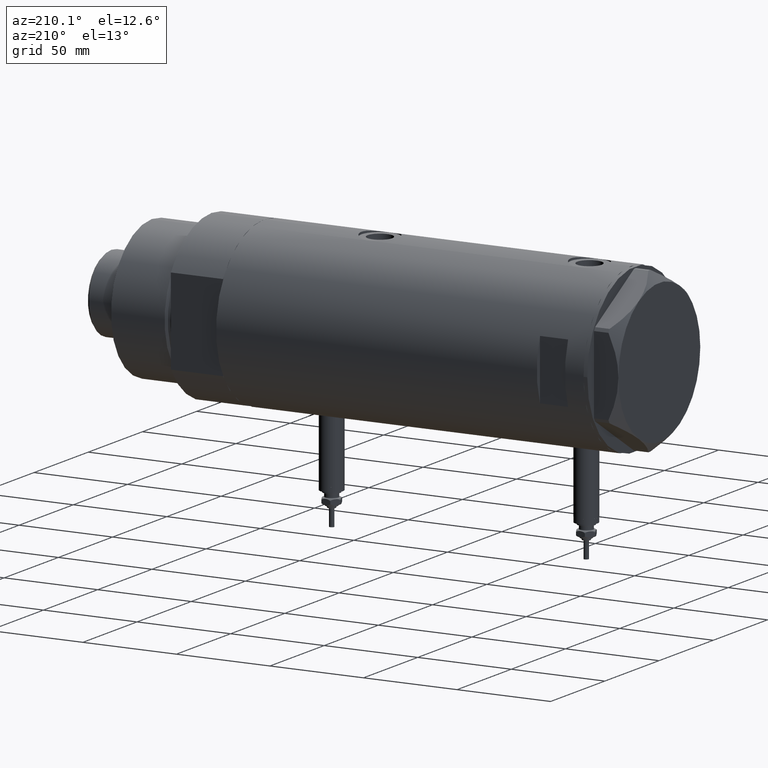
[diagram: clean part render]
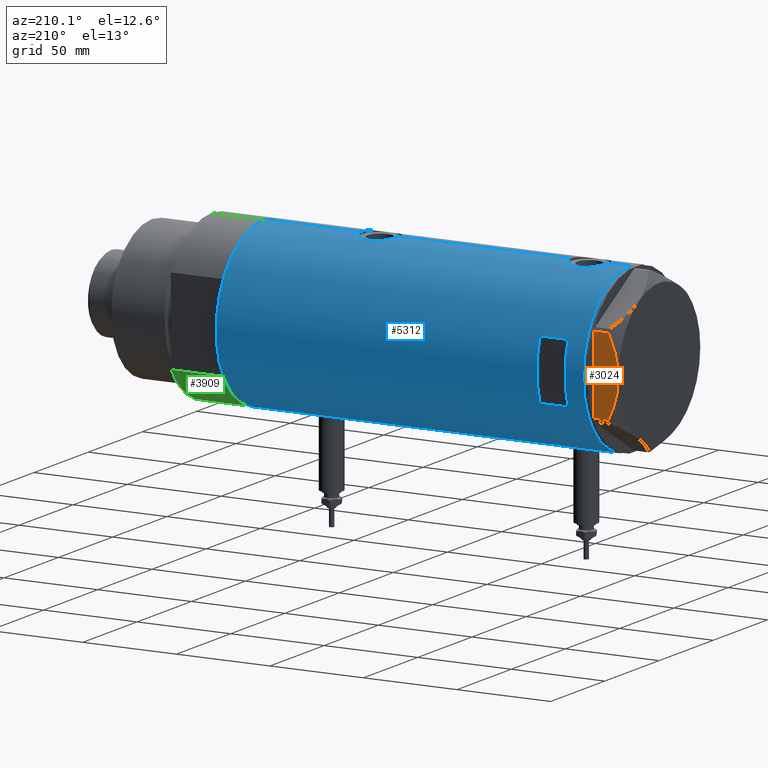
[diagram: same view with three faces highlighted in distinct colors, each labeled with its STEP entity id]
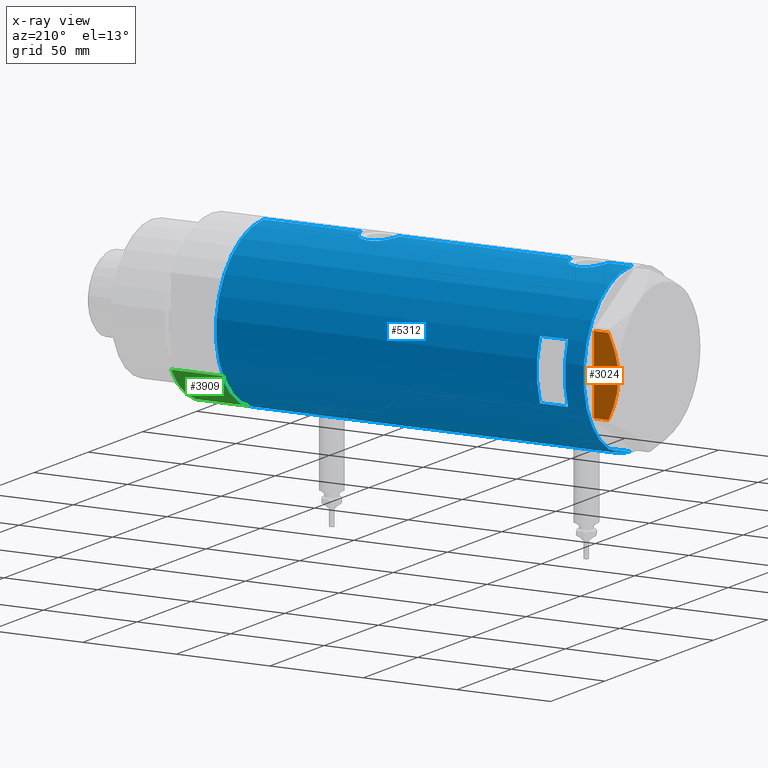
[diagram: x-ray of the same camera — body ghosted, the three highlighted faces saturated]
A machine part, auxiliary view with three faces highlighted in distinct colors.
The next image is the same camera in x-ray (body ghosted, the three faces saturated) — at least one of them is partly hidden behind the body in this view.
Their STEP definitions:

[orange] entity #3024 — the highlighted planar face has unit normal (0, -1, -0).
#94 = CARTESIAN_POINT ( 'NONE',  ( 37.75000000000000711, 1.802777518484591547E-14, 13.00000000000000000 ) ) ;
#240 = B_SPLINE_CURVE_WITH_KNOTS ( 'NONE', 3,
 ( #94, #674, #3798, #2518, #3362, #1487, #3332, #5192, #2880, #5221, #4743, #582, #2424, #1068 ),
 .UNSPECIFIED., .F., .F.,
 ( 4, 2, 2, 2, 2, 2, 4 ),
 ( 0.07749717587205659508, 0.08017617902235897598, 0.08285518217266137075, 0.08821318847326614643, 0.09357119477387092210, 0.09625019792417330300, 0.09892920107447569777 ),
 .UNSPECIFIED. ) ;
#327 = CARTESIAN_POINT ( 'NONE',  ( 37.75000000000000000, 20.67497266190835958, 7.709124142616976094 ) ) ;
#399 = CARTESIAN_POINT ( 'NONE',  ( 37.75000000000001421, -14.89874562435959504, 10.17375260246623547 ) ) ;
#498 = CARTESIAN_POINT ( 'NONE',  ( 37.75000000000000000, 20.67497266190835958, 0.000000000000000000 ) ) ;
#582 = CARTESIAN_POINT ( 'NONE',  ( 37.75000000000000000, 19.05362936076134162, 8.470554105526112210 ) ) ;
#609 = B_SPLINE_CURVE_WITH_KNOTS ( 'NONE', 3,
 ( #1417, #3727, #4559, #399, #5098, #3261, #3238, #5483, #2232, #4126 ),
 .UNSPECIFIED., .F., .F.,
 ( 4, 2, 2, 2, 4 ),
 ( 0.05601050456479946676, 0.06138217239161374711, 0.06406800630502089422, 0.06675384021842803439, 0.07749717587205659508 ),
 .UNSPECIFIED. ) ;
#674 = CARTESIAN_POINT ( 'NONE',  ( 37.75000000000000711, 0.9015134592203699615, 12.99999999999999112 ) ) ;
#684 = AXIS2_PLACEMENT_3D ( 'NONE', #3021, #2561, #1649 ) ;
#825 = EDGE_CURVE ( 'NONE', #1392, #4172, #5416, .T. ) ;
#828 = CARTESIAN_POINT ( 'NONE',  ( 37.75000000000000711, 1.802777518484591547E-14, 13.00000000000000000 ) ) ;
#1036 = DIRECTION ( 'NONE',  ( -4.775569585389645902E-16, 1.000000000000000000, 0.000000000000000000 ) ) ;
#1068 = CARTESIAN_POINT ( 'NONE',  ( 37.75000000000000000, 20.67497266190835958, 7.709124142616976094 ) ) ;
#1084 = FACE_OUTER_BOUND ( 'NONE', #3637, .T. ) ;
#1392 = VERTEX_POINT ( 'NONE', #498 ) ;
#1417 = CARTESIAN_POINT ( 'NONE',  ( 37.75000000000002132, -20.67497266190837024, 7.709124142616982311 ) ) ;
#1487 = CARTESIAN_POINT ( 'NONE',  ( 37.75000000000000000, 7.161343005612795132, 12.36677985830370829 ) ) ;
#1646 = ORIENTED_EDGE ( 'NONE', *, *, #825, .T. ) ;
#1649 = DIRECTION ( 'NONE',  ( 4.775569585389645902E-16, -1.000000000000000000, 0.000000000000000000 ) ) ;
#1982 = PLANE ( 'NONE',  #684 ) ;
#2047 = EDGE_CURVE ( 'NONE', #2965, #1392, #3800, .T. ) ;
#2106 = VECTOR ( 'NONE', #1036, 1000.000000000000000 ) ;
#2232 = CARTESIAN_POINT ( 'NONE',  ( 37.75000000000000000, -3.615248338761618552, 12.99999999999998934 ) ) ;
#2340 = CARTESIAN_POINT ( 'NONE',  ( 37.75000000000002132, -20.67497266190835958, 0.000000000000000000 ) ) ;
#2424 = CARTESIAN_POINT ( 'NONE',  ( 37.75000000000000000, 19.86857906850807964, 8.096480699986591034 ) ) ;
#2518 = CARTESIAN_POINT ( 'NONE',  ( 37.75000000000000711, 3.611424898442247233, 12.83826937481875596 ) ) ;
#2561 = DIRECTION ( 'NONE',  ( -1.000000000000000000, -4.775569585389645902E-16, 0.000000000000000000 ) ) ;
#2880 = CARTESIAN_POINT ( 'NONE',  ( 37.75000000000000000, 14.04742653794396823, 10.50092616350622166 ) ) ;
#2961 = DIRECTION ( 'NONE',  ( 0.000000000000000000, 0.000000000000000000, -1.000000000000000000 ) ) ;
#2965 = VERTEX_POINT ( 'NONE', #2340 ) ;
#3021 = CARTESIAN_POINT ( 'NONE',  ( 37.75000000000002132, -21.79497266190837124, 13.00000000000000000 ) ) ;
#3024 = ADVANCED_FACE ( 'NONE', ( #1084 ), #1982, .F. ) ;
#3082 = VERTEX_POINT ( 'NONE', #828 ) ;
#3148 = ORIENTED_EDGE ( 'NONE', *, *, #3757, .F. ) ;
#3238 = CARTESIAN_POINT ( 'NONE',  ( 37.75000000000002132, -11.46926194450820802, 11.30493988086502632 ) ) ;
#3261 = CARTESIAN_POINT ( 'NONE',  ( 37.75000000000001421, -12.33018559404072256, 11.04557586999680296 ) ) ;
#3332 = CARTESIAN_POINT ( 'NONE',  ( 37.75000000000000711, 8.905753572404311313, 11.99914237172014353 ) ) ;
#3362 = CARTESIAN_POINT ( 'NONE',  ( 37.75000000000000711, 4.503994958793054337, 12.74237531377021604 ) ) ;
#3441 = CARTESIAN_POINT ( 'NONE',  ( 37.75000000000002132, -20.67497266190835958, 13.00000000000000000 ) ) ;
#3590 = VECTOR ( 'NONE', #2961, 1000.000000000000000 ) ;
#3637 = EDGE_LOOP ( 'NONE', ( #4174, #4028, #4500, #1646, #3148 ) ) ;
#3727 = CARTESIAN_POINT ( 'NONE',  ( 37.75000000000001421, -19.06473524669325315, 8.482612457517156201 ) ) ;
#3757 = EDGE_CURVE ( 'NONE', #3082, #4172, #240, .T. ) ;
#3798 = CARTESIAN_POINT ( 'NONE',  ( 37.75000000000000000, 1.811728074765807994, 12.96720910498919466 ) ) ;
#3800 = LINE ( 'NONE', #5194, #2106 ) ;
#3944 = EDGE_CURVE ( 'NONE', #4669, #3082, #609, .T. ) ;
#4028 = ORIENTED_EDGE ( 'NONE', *, *, #5767, .T. ) ;
#4126 = CARTESIAN_POINT ( 'NONE',  ( 37.75000000000000711, 1.802777518484591547E-14, 13.00000000000000000 ) ) ;
#4172 = VERTEX_POINT ( 'NONE', #327 ) ;
#4174 = ORIENTED_EDGE ( 'NONE', *, *, #3944, .F. ) ;
#4346 = LINE ( 'NONE', #3441, #3590 ) ;
#4454 = CARTESIAN_POINT ( 'NONE',  ( 37.75000000000002132, -20.67497266190837024, 7.709124142616982311 ) ) ;
#4500 = ORIENTED_EDGE ( 'NONE', *, *, #2047, .T. ) ;
#4559 = CARTESIAN_POINT ( 'NONE',  ( 37.75000000000002132, -17.42329546264822682, 9.202188366597432889 ) ) ;
#4632 = DIRECTION ( 'NONE',  ( 0.000000000000000000, 0.000000000000000000, 1.000000000000000000 ) ) ;
#4669 = VERTEX_POINT ( 'NONE', #4454 ) ;
#4743 = CARTESIAN_POINT ( 'NONE',  ( 37.75000000000000000, 17.40390235304479560, 9.187919079516760235 ) ) ;
#4971 = CARTESIAN_POINT ( 'NONE',  ( 37.75000000000000000, 20.67497266190835958, 13.00000000000000000 ) ) ;
#5098 = CARTESIAN_POINT ( 'NONE',  ( 37.75000000000002132, -14.04433099034386778, 10.48027127384610679 ) ) ;
#5192 = CARTESIAN_POINT ( 'NONE',  ( 37.75000000000000711, 12.34877760086738441, 11.06613894200179260 ) ) ;
#5194 = CARTESIAN_POINT ( 'NONE',  ( 37.75000000000002132, -21.79497266190837124, 0.000000000000000000 ) ) ;
#5221 = CARTESIAN_POINT ( 'NONE',  ( 37.75000000000000711, 16.56731140591521978, 9.531835068628826235 ) ) ;
#5416 = LINE ( 'NONE', #4971, #5988 ) ;
#5483 = CARTESIAN_POINT ( 'NONE',  ( 37.75000000000000711, -7.143641079404811300, 12.47474846747315347 ) ) ;
#5767 = EDGE_CURVE ( 'NONE', #4669, #2965, #4346, .T. ) ;
#5988 = VECTOR ( 'NONE', #4632, 1000.000000000000000 ) ;

[blue] entity #5312 — the highlighted cylindrical surface (partial cylindrical patch) has radius 44 mm, axis along (-1, -0, 0).
#1 = EDGE_LOOP ( 'NONE', ( #995, #1433, #5867, #2802, #4451, #5673, #2450, #1846, #1928, #2270, #2792, #1565 ) ) ;
#11 = CIRCLE ( 'NONE', #3398, 44.00000000000000000 ) ;
#12 = CARTESIAN_POINT ( 'NONE',  ( -43.97068415157985299, 1.617901284326948907, -55.85954871699957636 ) ) ;
#30 = CARTESIAN_POINT ( 'NONE',  ( -43.66575107734168171, 5.414026674167576658, 71.07064911962299902 ) ) ;
#64 = CARTESIAN_POINT ( 'NONE',  ( -43.64122538274736485, 5.608286354294326870, -59.13388613036661212 ) ) ;
#113 = CARTESIAN_POINT ( 'NONE',  ( 0.000000000000000000, 0.000000000000000000, 73.20000000000018758 ) ) ;
#126 = CARTESIAN_POINT ( 'NONE',  ( 43.92756755766649235, 2.604528169608121946, -26.42286588097656974 ) ) ;
#136 = CARTESIAN_POINT ( 'NONE',  ( -44.00000000000000000, 5.388445781992449847E-15, -68.15000000000001990 ) ) ;
#144 = CARTESIAN_POINT ( 'NONE',  ( 42.92259096922160211, 9.678247830257127760, 78.50005993028796070 ) ) ;
#152 = CARTESIAN_POINT ( 'NONE',  ( 43.39051256276903246, 7.301963662770314833, -29.25975531787057804 ) ) ;
#162 = CARTESIAN_POINT ( 'NONE',  ( -43.92459115390705193, 2.581892149021001615, -67.59545827073348789 ) ) ;
#193 = CARTESIAN_POINT ( 'NONE',  ( -43.83593455218809964, 3.811409182021281428, -56.92985072296500704 ) ) ;
#194 = VECTOR ( 'NONE', #4339, 1000.000000000000000 ) ;
#203 = CARTESIAN_POINT ( 'NONE',  ( 44.00000000000002132, 0.6630566900259825536, 65.90000000000003411 ) ) ;
#213 = CARTESIAN_POINT ( 'NONE',  ( 43.97062489912107708, 1.639461988184801156, -26.22985373334014625 ) ) ;
#215 = CARTESIAN_POINT ( 'NONE',  ( -43.80646232387288563, 4.132500855894024383, 78.90645585403358098 ) ) ;
#243 = DIRECTION ( 'NONE',  ( 0.000000000000000000, 0.000000000000000000, 1.000000000000000000 ) ) ;
#253 = CARTESIAN_POINT ( 'NONE',  ( 44.00000000000000000, 0.000000000000000000, 98.20000000000000284 ) ) ;
#328 = VERTEX_POINT ( 'NONE', #3810 ) ;
#352 = EDGE_CURVE ( 'NONE', #2478, #4715, #6005, .T. ) ;
#356 = CARTESIAN_POINT ( 'NONE',  ( -44.00000000000000000, 5.388445916248353619E-15, 98.20000000000000284 ) ) ;
#362 = CARTESIAN_POINT ( 'NONE',  ( -43.55382423478827292, 6.250151562062086441, 73.79410470512661391 ) ) ;
#397 = CARTESIAN_POINT ( 'NONE',  ( -43.71938389712227746, 4.966728892888062852, 78.01614452340872674 ) ) ;
#422 = EDGE_CURVE ( 'NONE', #987, #2784, #4640, .T. ) ;
#426 = CARTESIAN_POINT ( 'NONE',  ( -43.55386785759471024, 6.249847571481740971, 74.61054947617955690 ) ) ;
#428 = CARTESIAN_POINT ( 'NONE',  ( 43.85884410404901246, 3.534688330930388922, -45.46019808750336466 ) ) ;
#481 = DIRECTION ( 'NONE',  ( 0.000000000000000000, 0.000000000000000000, 1.000000000000000000 ) ) ;
#483 = CARTESIAN_POINT ( 'NONE',  ( 43.07598348983508174, 8.971306953823013686, -40.52969423187187914 ) ) ;
#496 = CARTESIAN_POINT ( 'NONE',  ( -43.95446647384544292, 2.010857111636600969, -55.97875773636064878 ) ) ;
#515 = CARTESIAN_POINT ( 'NONE',  ( 42.86370458161098185, 9.935807968041572735, -37.40904550429866049 ) ) ;
#532 = CARTESIAN_POINT ( 'NONE',  ( 43.80640706382536109, 4.134078575915387965, 85.01132821562090669 ) ) ;
#546 = CARTESIAN_POINT ( 'NONE',  ( -43.97754480947185129, 1.419697478855583617, 80.29003276052073090 ) ) ;
#560 = CIRCLE ( 'NONE', #3949, 44.00000000000000000 ) ;
#567 = CARTESIAN_POINT ( 'NONE',  ( -15.96871942267132027, 40.99999999999999289, 73.20000000000000284 ) ) ;
#574 = EDGE_CURVE ( 'NONE', #2173, #5268, #1090, .T. ) ;
#588 = CARTESIAN_POINT ( 'NONE',  ( -43.67867890111968876, 5.309046579850795311, -65.20422779076025677 ) ) ;
#599 = CARTESIAN_POINT ( 'NONE',  ( 43.27871541412905287, 7.937063204555986573, 81.99174997246032603 ) ) ;
#610 = CARTESIAN_POINT ( 'NONE',  ( 43.80640706382535399, 4.134078575915393294, -26.98867178437913239 ) ) ;
#625 = LINE ( 'NONE', #3896, #3283 ) ;
#637 = FACE_BOUND ( 'NONE', #5743, .T. ) ;
#654 = CARTESIAN_POINT ( 'NONE',  ( 43.94229162222111285, 2.275476993733910547, 66.15685535777693360 ) ) ;
#671 = CYLINDRICAL_SURFACE ( 'NONE', #1736, 44.00000000000000000 ) ;
#683 = CARTESIAN_POINT ( 'NONE',  ( -44.00000000000000000, 5.388445916248353619E-15, -98.20000000000000284 ) ) ;
#726 = FACE_OUTER_BOUND ( 'NONE', #1, .T. ) ;
#739 = B_SPLINE_CURVE_WITH_KNOTS ( 'NONE', 3,
 ( #5955, #2284, #3705, #1778, #4154, #879, #428, #3667, #6009, #5574, #1888, #2822, #1393, #4678, #4591, #4642, #5001, #483, #3213, #2258, #2693, #5981, #2322, #515, #1804, #4192, #5519, #1861, #1361, #5073, #4772, #1545, #3851, #1482, #4285, #1028, #152, #2018, #3299, #1579, #2449, #5738, #610, #5188, #126, #213, #2510, #1092, #1451, #2876 ),
 .UNSPECIFIED., .F., .F.,
 ( 4, 2, 2, 2, 2, 2, 2, 2, 2, 2, 2, 2, 2, 2, 2, 2, 2, 2, 2, 2, 2, 2, 2, 2, 4 ),
 ( 2.755634020688765633E-18, 0.001960456513248879772, 0.002940684769873318574, 0.003920913026497756942, 0.005881369539746635414, 0.006861597796371073782, 0.007841826052995512150, 0.009802282566244404499, 0.01078251082286885675, 0.01176273907949330899, 0.01274296733611776297, 0.01372319559274221522, 0.01568365210599110063, 0.01764410861923998777, 0.01960456513248886798, 0.02058479338911332196, 0.02156502164573776553, 0.02254524990236220564, 0.02352547815898664574, 0.02548593467223553288, 0.02646616292885997299, 0.02744639118548441656, 0.02940684769873329329, 0.03038707595535772993, 0.03136730421198216656 ),
 .UNSPECIFIED. ) ;
#814 = CARTESIAN_POINT ( 'NONE',  ( -43.87596296923810968, 3.305851531861728976, 68.89196414123739487 ) ) ;
#854 = VERTEX_POINT ( 'NONE', #356 ) ;
#855 = CIRCLE ( 'NONE', #3377, 44.00000000000000000 ) ;
#877 = CARTESIAN_POINT ( 'NONE',  ( -43.80687348212602217, 4.128385987736833407, 69.48951256689038303 ) ) ;
#879 = CARTESIAN_POINT ( 'NONE',  ( 43.88297407487991109, 3.222431612395382228, -45.57228202029342157 ) ) ;
#883 = CARTESIAN_POINT ( 'NONE',  ( -44.00000000000000000, 5.388445781992449847E-15, -68.15000000000001990 ) ) ;
#928 = CARTESIAN_POINT ( 'NONE',  ( -43.91315028150560096, 2.769134003554746482, 68.59317380624599991 ) ) ;
#987 = VERTEX_POINT ( 'NONE', #993 ) ;
#993 = CARTESIAN_POINT ( 'NONE',  ( 44.00000000000000000, 0.000000000000000000, -98.20000000000000284 ) ) ;
#995 = ORIENTED_EDGE ( 'NONE', *, *, #5019, .T. ) ;
#999 = CARTESIAN_POINT ( 'NONE',  ( -43.94507179847653333, 2.206027755801677870, 80.05131522281796208 ) ) ;
#1015 = ORIENTED_EDGE ( 'NONE', *, *, #2732, .F. ) ;
#1028 = CARTESIAN_POINT ( 'NONE',  ( 43.35257020184194232, 7.523219862841651562, -29.50397445915864481 ) ) ;
#1048 = CARTESIAN_POINT ( 'NONE',  ( 42.96547725528407824, 9.488625330801083280, 79.12450347211071744 ) ) ;
#1052 = CARTESIAN_POINT ( 'NONE',  ( 0.000000000000000000, 0.000000000000000000, 88.20000000000000284 ) ) ;
#1073 = CARTESIAN_POINT ( 'NONE',  ( -43.91315028150559385, 2.769134003554746037, -67.50682619375406546 ) ) ;
#1076 = DIRECTION ( 'NONE',  ( 0.000000000000000000, 0.000000000000000000, 1.000000000000000000 ) ) ;
#1083 = CARTESIAN_POINT ( 'NONE',  ( 43.07598348983507464, 8.971306953823011909, 71.47030576812815639 ) ) ;
#1090 = LINE ( 'NONE', #5187, #4824 ) ;
#1092 = CARTESIAN_POINT ( 'NONE',  ( 43.99635668041006653, 0.6544833911834557760, -26.11599291522469457 ) ) ;
#1098 = DIRECTION ( 'NONE',  ( 1.000000000000000000, 0.000000000000000000, 0.000000000000000000 ) ) ;
#1103 = CARTESIAN_POINT ( 'NONE',  ( -43.87596296923811678, 3.305851531861740522, -67.20803585876262787 ) ) ;
#1108 = VERTEX_POINT ( 'NONE', #567 ) ;
#1112 = CARTESIAN_POINT ( 'NONE',  ( 43.39051256276903246, 7.301963662770311281, 82.74024468212945749 ) ) ;
#1126 = EDGE_CURVE ( 'NONE', #328, #5857, #560, .T. ) ;
#1134 = CARTESIAN_POINT ( 'NONE',  ( 43.71454618729810448, 5.012329428678959253, 84.55936974058313638 ) ) ;
#1148 = CARTESIAN_POINT ( 'NONE',  ( 0.000000000000000000, 0.000000000000000000, 98.20000000000000284 ) ) ;
#1178 = CARTESIAN_POINT ( 'NONE',  ( -43.88883895882799635, 3.130924084324101297, 68.78687544251856423 ) ) ;
#1187 = EDGE_CURVE ( 'NONE', #3752, #4991, #3438, .T. ) ;
#1292 = DIRECTION ( 'NONE',  ( 0.000000000000000000, 0.000000000000000000, 1.000000000000000000 ) ) ;
#1319 = LINE ( 'NONE', #2775, #5604 ) ;
#1359 = CARTESIAN_POINT ( 'NONE',  ( -43.59867737633045692, 5.931302618788633296, 72.18750504970115855 ) ) ;
#1361 = CARTESIAN_POINT ( 'NONE',  ( 42.96547725528407113, 9.488625330801086832, -32.87549652788927546 ) ) ;
#1365 = CARTESIAN_POINT ( 'NONE',  ( -43.95446647384543581, 2.010857111636599637, 80.12124226363938817 ) ) ;
#1366 = DIRECTION ( 'NONE',  ( 1.000000000000000000, 0.000000000000000000, 0.000000000000000000 ) ) ;
#1393 = CARTESIAN_POINT ( 'NONE',  ( 43.46520118248736253, 6.843279251446920064, -43.39898327212166151 ) ) ;
#1415 = CARTESIAN_POINT ( 'NONE',  ( -43.66555354895124452, 5.415612800338318600, 77.32656357177557993 ) ) ;
#1429 = CARTESIAN_POINT ( 'NONE',  ( -43.88968326835893663, 3.132363423941624259, -56.47620767643520168 ) ) ;
#1433 = ORIENTED_EDGE ( 'NONE', *, *, #1187, .T. ) ;
#1451 = CARTESIAN_POINT ( 'NONE',  ( 44.00000000000002132, 0.3269372501759380545, -26.10000000000001918 ) ) ;
#1463 = CARTESIAN_POINT ( 'NONE',  ( -43.64133398152736021, 5.607447751852158824, -64.66786045012435125 ) ) ;
#1471 = CARTESIAN_POINT ( 'NONE',  ( 43.50265731352001808, 6.601850423195591233, 68.38180832701048928 ) ) ;
#1482 = CARTESIAN_POINT ( 'NONE',  ( 43.24261242176996234, 8.130827601038834729, -30.26944813145831148 ) ) ;
#1501 = CARTESIAN_POINT ( 'NONE',  ( 42.99303682946563043, 9.360292926890506848, 72.36575779792798357 ) ) ;
#1522 = CARTESIAN_POINT ( 'NONE',  ( -43.58362292239463187, 6.039157555656604615, -60.27736421551959722 ) ) ;
#1533 = CARTESIAN_POINT ( 'NONE',  ( 42.90786968859021044, 9.742642423712171151, 73.62197703452876851 ) ) ;
#1545 = CARTESIAN_POINT ( 'NONE',  ( 43.13962074468733476, 8.660138848900677644, -31.08910258836065665 ) ) ;
#1559 = CARTESIAN_POINT ( 'NONE',  ( -43.80687348212602217, 4.128385987736840512, -66.61048743310966813 ) ) ;
#1565 = ORIENTED_EDGE ( 'NONE', *, *, #422, .F. ) ;
#1567 = CARTESIAN_POINT ( 'NONE',  ( 42.86396777580258544, 9.934664719553397916, 77.21576199026523568 ) ) ;
#1579 = CARTESIAN_POINT ( 'NONE',  ( 43.68141895191831026, 5.292250119194736868, -27.60895047714807049 ) ) ;
#1594 = CARTESIAN_POINT ( 'NONE',  ( 43.04652664061922707, 9.111152824375430725, 80.03458009214594426 ) ) ;
#1604 = EDGE_CURVE ( 'NONE', #2478, #854, #4450, .T. ) ;
#1642 = AXIS2_PLACEMENT_3D ( 'NONE', #2200, #3672, #1366 ) ;
#1648 = CARTESIAN_POINT ( 'NONE',  ( 43.98169492814103165, 1.310824514239766536, 85.81919780380685836 ) ) ;
#1683 = CARTESIAN_POINT ( 'NONE',  ( 0.000000000000000000, 0.000000000000000000, -98.20000000000000284 ) ) ;
#1698 = VERTEX_POINT ( 'NONE', #253 ) ;
#1736 = AXIS2_PLACEMENT_3D ( 'NONE', #1683, #243, #5741 ) ;
#1750 = CARTESIAN_POINT ( 'NONE',  ( -44.00000000000000000, 5.388445781982983516E-15, 67.95000000000001705 ) ) ;
#1770 = DIRECTION ( 'NONE',  ( 0.000000000000000000, 0.000000000000000000, 1.000000000000000000 ) ) ;
#1775 = CARTESIAN_POINT ( 'NONE',  ( -43.74833112883977293, 4.708208586952001617, 78.33050383508880543 ) ) ;
#1778 = CARTESIAN_POINT ( 'NONE',  ( 43.94229162222111285, 2.275476993733913655, -45.84314464222307350 ) ) ;
#1803 = CARTESIAN_POINT ( 'NONE',  ( -43.64122538274737195, 5.608286354294323317, 76.96611386963340351 ) ) ;
#1804 = CARTESIAN_POINT ( 'NONE',  ( 42.84863276153905787, 9.999733523508369970, -36.75869904750778261 ) ) ;
#1832 = CARTESIAN_POINT ( 'NONE',  ( -43.92459115390705193, 2.581892149020998950, 68.50454172926654905 ) ) ;
#1846 = ORIENTED_EDGE ( 'NONE', *, *, #4540, .F. ) ;
#1859 = CARTESIAN_POINT ( 'NONE',  ( -43.99999999999997158, 0.4081702738789203533, 67.94999999999997442 ) ) ;
#1861 = CARTESIAN_POINT ( 'NONE',  ( 42.92259096922158790, 9.678247830257131312, -33.49994006971207483 ) ) ;
#1888 = CARTESIAN_POINT ( 'NONE',  ( 43.57657781376907025, 6.094873943596692101, -44.03474301119596390 ) ) ;
#1900 = CARTESIAN_POINT ( 'NONE',  ( -43.66575107734169592, 5.414026674167585540, -65.02935088037702371 ) ) ;
#1909 = CARTESIAN_POINT ( 'NONE',  ( 44.00000000000000000, -2.552687571866728611E-15, 65.90000000000001990 ) ) ;
#1925 = CARTESIAN_POINT ( 'NONE',  ( -43.88968326835893663, 3.132363423941621150, 79.62379232356479974 ) ) ;
#1928 = ORIENTED_EDGE ( 'NONE', *, *, #4618, .F. ) ;
#1952 = CARTESIAN_POINT ( 'NONE',  ( 43.98503110884232115, 1.314607393679875669, 65.96529015654452621 ) ) ;
#1956 = CARTESIAN_POINT ( 'NONE',  ( -44.00000000000000000, 4.742435893011557518E-16, 80.45000000000001705 ) ) ;
#1996 = CARTESIAN_POINT ( 'NONE',  ( -43.59995593514495482, 5.920088975424572908, -59.88582091308221322 ) ) ;
#2007 = CARTESIAN_POINT ( 'NONE',  ( 43.77939001959705223, 4.442287752090382291, 66.91693822440836925 ) ) ;
#2018 = CARTESIAN_POINT ( 'NONE',  ( 43.50382207688846847, 6.605942769308304818, -28.56395311161779915 ) ) ;
#2032 = CARTESIAN_POINT ( 'NONE',  ( -43.66555354895123031, 5.415612800338319488, -58.77343642822444281 ) ) ;
#2042 = CARTESIAN_POINT ( 'NONE',  ( 42.84850876528983576, 10.00026482975808229, 76.55058305470424784 ) ) ;
#2173 = VERTEX_POINT ( 'NONE', #4391 ) ;
#2174 = CARTESIAN_POINT ( 'NONE',  ( 43.97062489912108418, 1.639461988184795604, 85.77014626665985020 ) ) ;
#2200 = CARTESIAN_POINT ( 'NONE',  ( 0.000000000000000000, 0.000000000000000000, -98.20000000000000284 ) ) ;
#2239 = B_SPLINE_CURVE_WITH_KNOTS ( 'NONE', 3,
 ( #3134, #2737, #4597, #4166, #12, #496, #3369, #3275, #1429, #193, #3858, #2950, #2858, #3337, #2032, #64, #2429, #1996, #1522, #3309, #2888, #4227, #2924, #4810, #5617, #5680, #5229, #1463, #1900, #588, #2836, #2389, #1559, #5170, #1103, #4687, #1073, #162, #4298, #3893, #4782, #3833, #136 ),
 .UNSPECIFIED., .F., .F.,
 ( 4, 2, 2, 2, 2, 2, 2, 2, 1, 2, 2, 2, 2, 2, 2, 2, 2, 2, 2, 2, 2, 4 ),
 ( 6.289190293195367850E-19, 0.001222818171749683351, 0.001834227257624524918, 0.002445636343499366702, 0.003668454515249052871, 0.004891272686998739475, 0.006114090858748426512, 0.006725499944623267862, 0.007336909030498110947, 0.007948318116372952297, 0.008559727202247794514, 0.009782545373997478949, 0.01100536354574716165, 0.01222818171749684782, 0.01283959080337170912, 0.01345099988924656868, 0.01467381806099629128, 0.01589663623274601215, 0.01650804531862087518, 0.01711945440449573475, 0.01834227257624545734, 0.01956509074799518341 ),
 .UNSPECIFIED. ) ;
#2257 = CARTESIAN_POINT ( 'NONE',  ( -43.74805001749254529, 4.711035428619386956, 70.07223935874202425 ) ) ;
#2258 = CARTESIAN_POINT ( 'NONE',  ( 42.99303682946562333, 9.360292926890512177, -39.63424220207205195 ) ) ;
#2270 = ORIENTED_EDGE ( 'NONE', *, *, #574, .F. ) ;
#2282 = CARTESIAN_POINT ( 'NONE',  ( -43.55963022497231663, 6.210088036293396563, 75.01646163017424840 ) ) ;
#2284 = CARTESIAN_POINT ( 'NONE',  ( 44.00000000000002132, 0.6630566900259828866, -46.10000000000002984 ) ) ;
#2320 = CARTESIAN_POINT ( 'NONE',  ( -43.67863969133946966, 5.309394106110037370, 77.50379296502549664 ) ) ;
#2322 = CARTESIAN_POINT ( 'NONE',  ( 42.90786968859021044, 9.742642423712174704, -38.37802296547129544 ) ) ;
#2338 = EDGE_CURVE ( 'NONE', #4351, #4715, #1319, .T. ) ;
#2366 = CARTESIAN_POINT ( 'NONE',  ( 43.35257020184194232, 7.523219862841656891, 82.49602554084137296 ) ) ;
#2389 = CARTESIAN_POINT ( 'NONE',  ( -43.74805001749253819, 4.711035428619393173, -66.02776064125799849 ) ) ;
#2429 = CARTESIAN_POINT ( 'NONE',  ( -43.61859254253774054, 5.782454868881357513, -59.50213599105533291 ) ) ;
#2439 = CARTESIAN_POINT ( 'NONE',  ( 43.77712723341632994, 4.432620652875498557, 84.86995009759974096 ) ) ;
#2449 = CARTESIAN_POINT ( 'NONE',  ( 43.71454618729809738, 5.012329428678962806, -27.44063025941690270 ) ) ;
#2450 = ORIENTED_EDGE ( 'NONE', *, *, #3719, .F. ) ;
#2462 = DIRECTION ( 'NONE',  ( 0.000000000000000000, 0.000000000000000000, 1.000000000000000000 ) ) ;
#2478 = VERTEX_POINT ( 'NONE', #1956 ) ;
#2510 = CARTESIAN_POINT ( 'NONE',  ( 43.98169492814103876, 1.310824514239766536, -26.18080219619315585 ) ) ;
#2662 = CARTESIAN_POINT ( 'NONE',  ( 44.00000000000000000, 0.000000000000000000, -98.20000000000000284 ) ) ;
#2691 = CARTESIAN_POINT ( 'NONE',  ( -43.55973179376100290, 6.209370339246232717, 73.37938232940132366 ) ) ;
#2693 = CARTESIAN_POINT ( 'NONE',  ( 42.96879251999280314, 9.470609476412120031, -39.32722899941056482 ) ) ;
#2732 = EDGE_CURVE ( 'NONE', #3292, #1108, #11, .T. ) ;
#2737 = CARTESIAN_POINT ( 'NONE',  ( -44.00000000000000000, 0.4135148353567994484, -55.64999999999999858 ) ) ;
#2755 = CARTESIAN_POINT ( 'NONE',  ( -43.59995593514495482, 5.920088975424566691, 76.21417908691780951 ) ) ;
#2766 = CARTESIAN_POINT ( 'NONE',  ( 15.96871942267132027, 40.99999999999999289, 73.20000000000000284 ) ) ;
#2775 = CARTESIAN_POINT ( 'NONE',  ( -44.00000000000000000, 5.388445916248353619E-15, -98.20000000000000284 ) ) ;
#2783 = CARTESIAN_POINT ( 'NONE',  ( -43.58221825186232223, 6.049526113783018744, 72.57737029182041510 ) ) ;
#2784 = VERTEX_POINT ( 'NONE', #3200 ) ;
#2792 = ORIENTED_EDGE ( 'NONE', *, *, #4013, .F. ) ;
#2802 = ORIENTED_EDGE ( 'NONE', *, *, #2338, .T. ) ;
#2822 = CARTESIAN_POINT ( 'NONE',  ( 43.50265731352001097, 6.601850423195605444, -43.61819167298953914 ) ) ;
#2836 = CARTESIAN_POINT ( 'NONE',  ( -43.71901936021025392, 4.969830049220633761, -65.71167637698874842 ) ) ;
#2842 = DIRECTION ( 'NONE',  ( 0.000000000000000000, 4.625929269271481378E-15, 1.000000000000000000 ) ) ;
#2858 = CARTESIAN_POINT ( 'NONE',  ( -43.71938389712227035, 4.966728892888067293, -58.08385547659131021 ) ) ;
#2864 = CARTESIAN_POINT ( 'NONE',  ( 43.57657781376909156, 6.094873943596678778, 67.96525698880405741 ) ) ;
#2876 = CARTESIAN_POINT ( 'NONE',  ( 44.00000000000000000, -3.917142467416489149E-21, -26.10000000000000497 ) ) ;
#2888 = CARTESIAN_POINT ( 'NONE',  ( -43.55963022497232373, 6.210088036293401004, -61.08353836982577434 ) ) ;
#2897 = CARTESIAN_POINT ( 'NONE',  ( 43.13962074468734897, 8.660138848900670538, 80.91089741163936822 ) ) ;
#2924 = CARTESIAN_POINT ( 'NONE',  ( -43.55382423478827292, 6.250151562062090882, -62.30589529487338041 ) ) ;
#2933 = CARTESIAN_POINT ( 'NONE',  ( 42.92624534982631701, 9.661626915142809580, 73.29991995855291975 ) ) ;
#2950 = CARTESIAN_POINT ( 'NONE',  ( -43.74833112883975872, 4.708208586952008723, -57.76949616491121731 ) ) ;
#2957 = CARTESIAN_POINT ( 'NONE',  ( 43.92466059386729427, 2.593004216484783964, 66.23643330328646073 ) ) ;
#2984 = CARTESIAN_POINT ( 'NONE',  ( 43.17277162440354488, 8.493905080221262338, 70.61212964891505806 ) ) ;
#3071 = VECTOR ( 'NONE', #481, 1000.000000000000000 ) ;
#3134 = CARTESIAN_POINT ( 'NONE',  ( -44.00000000000000000, 6.472851849715296073E-16, -55.65000000000000568 ) ) ;
#3200 = CARTESIAN_POINT ( 'NONE',  ( 44.00000000000000000, 2.836945177865671897E-15, -46.10000000000000853 ) ) ;
#3211 = CARTESIAN_POINT ( 'NONE',  ( -43.97181775256600389, 1.624866278047415680, 68.15107081614905837 ) ) ;
#3213 = CARTESIAN_POINT ( 'NONE',  ( 43.04663170950394857, 9.110642017076081345, -40.23547502190394454 ) ) ;
#3266 = CARTESIAN_POINT ( 'NONE',  ( -44.00000000000000711, 0.4135148353567996149, 80.45000000000001705 ) ) ;
#3275 = CARTESIAN_POINT ( 'NONE',  ( -43.91413175532568403, 2.773555030353458850, -56.28415761633254277 ) ) ;
#3283 = VECTOR ( 'NONE', #2462, 1000.000000000000000 ) ;
#3292 = VERTEX_POINT ( 'NONE', #2766 ) ;
#3299 = CARTESIAN_POINT ( 'NONE',  ( 43.57805684119164624, 6.103282219787168117, -28.15183798352141054 ) ) ;
#3308 = ORIENTED_EDGE ( 'NONE', *, *, #4610, .F. ) ;
#3309 = CARTESIAN_POINT ( 'NONE',  ( -43.57657963456318839, 6.089610171536609329, -60.47821460419189066 ) ) ;
#3320 = CARTESIAN_POINT ( 'NONE',  ( 42.96879251999280314, 9.470609476412112926, 72.67277100058944939 ) ) ;
#3337 = CARTESIAN_POINT ( 'NONE',  ( -43.67863969133946256, 5.309394106110041811, -58.59620703497452610 ) ) ;
#3348 = CARTESIAN_POINT ( 'NONE',  ( 43.46520118248735542, 6.843279251446916511, 68.60101672787835980 ) ) ;
#3369 = CARTESIAN_POINT ( 'NONE',  ( -43.94507179847653333, 2.206027755801681867, -56.04868477718203224 ) ) ;
#3376 = LINE ( 'NONE', #4274, #194 ) ;
#3377 = AXIS2_PLACEMENT_3D ( 'NONE', #1148, #4355, #1098 ) ;
#3398 = AXIS2_PLACEMENT_3D ( 'NONE', #113, #2842, #4630 ) ;
#3412 = CARTESIAN_POINT ( 'NONE',  ( 43.07641822757289418, 8.969229373860565957, 80.33396235790173989 ) ) ;
#3436 = CARTESIAN_POINT ( 'NONE',  ( 43.50382207688846847, 6.605942769308303930, 83.43604688838220795 ) ) ;
#3438 = LINE ( 'NONE', #5293, #4833 ) ;
#3504 = DIRECTION ( 'NONE',  ( 0.000000000000000000, 0.000000000000000000, 1.000000000000000000 ) ) ;
#3577 = ORIENTED_EDGE ( 'NONE', *, *, #1126, .F. ) ;
#3635 = CARTESIAN_POINT ( 'NONE',  ( -43.67867890111967455, 5.309046579850785541, 70.89577220923978018 ) ) ;
#3665 = CARTESIAN_POINT ( 'NONE',  ( -43.95549163632549750, 2.014511215452027937, 68.26941044295020333 ) ) ;
#3667 = CARTESIAN_POINT ( 'NONE',  ( 43.77939001959705223, 4.442287752090387620, -45.08306177559163075 ) ) ;
#3672 = DIRECTION ( 'NONE',  ( 0.000000000000000000, 0.000000000000000000, 1.000000000000000000 ) ) ;
#3675 = VECTOR ( 'NONE', #1292, 1000.000000000000000 ) ;
#3705 = CARTESIAN_POINT ( 'NONE',  ( 43.98503110884232825, 1.314607393679877445, -46.03470984345550221 ) ) ;
#3719 = EDGE_CURVE ( 'NONE', #1698, #854, #855, .T. ) ;
#3724 = CARTESIAN_POINT ( 'NONE',  ( -43.57657963456318839, 6.089610171536606664, 75.62178539580813208 ) ) ;
#3752 = VERTEX_POINT ( 'NONE', #4254 ) ;
#3777 = CARTESIAN_POINT ( 'NONE',  ( 43.88297407487991109, 3.222431612395379119, 66.42771797970659975 ) ) ;
#3810 = CARTESIAN_POINT ( 'NONE',  ( -15.96871942267132027, 40.99999999999999289, 88.20000000000000284 ) ) ;
#3814 = CARTESIAN_POINT ( 'NONE',  ( 43.35294442506074120, 7.532526048221051873, 69.29064585508892549 ) ) ;
#3833 = CARTESIAN_POINT ( 'NONE',  ( -44.00000000000000711, 0.4081702738789189655, -68.15000000000003411 ) ) ;
#3851 = CARTESIAN_POINT ( 'NONE',  ( 43.17306590853065273, 8.492365194390522731, -30.80987467306545113 ) ) ;
#3858 = CARTESIAN_POINT ( 'NONE',  ( -43.80646232387289274, 4.132500855894034153, -57.19354414596645597 ) ) ;
#3867 = CARTESIAN_POINT ( 'NONE',  ( 43.61291203895921598, 5.829986172017926016, 67.76871289213170257 ) ) ;
#3879 = CIRCLE ( 'NONE', #1642, 44.00000000000000000 ) ;
#3893 = CARTESIAN_POINT ( 'NONE',  ( -43.97181775256600389, 1.624866278047417012, -67.94892918385096436 ) ) ;
#3896 = CARTESIAN_POINT ( 'NONE',  ( 44.00000000000000000, 0.000000000000000000, -98.20000000000000284 ) ) ;
#3900 = CARTESIAN_POINT ( 'NONE',  ( 43.27822890220284791, 7.945655169171516263, 69.79274616710709722 ) ) ;
#3949 = AXIS2_PLACEMENT_3D ( 'NONE', #1052, #4181, #5242 ) ;
#3987 = CARTESIAN_POINT ( 'NONE',  ( 44.00000000000000000, -3.917104602093038540E-21, 85.90000000000000568 ) ) ;
#4013 = EDGE_CURVE ( 'NONE', #2784, #2173, #739, .T. ) ;
#4040 = VERTEX_POINT ( 'NONE', #5162 ) ;
#4064 = CARTESIAN_POINT ( 'NONE',  ( -43.71901936021023971, 4.969830049220626655, 70.38832362301124590 ) ) ;
#4106 = CARTESIAN_POINT ( 'NONE',  ( -44.00000000000000000, 5.388445781982983516E-15, 67.95000000000001705 ) ) ;
#4154 = CARTESIAN_POINT ( 'NONE',  ( 43.92466059386730137, 2.593004216484785740, -45.76356669671356059 ) ) ;
#4166 = CARTESIAN_POINT ( 'NONE',  ( -43.97754480947186551, 1.419697478855586059, -55.80996723947924210 ) ) ;
#4181 = DIRECTION ( 'NONE',  ( -0.000000000000000000, -0.000000000000000000, -1.000000000000000000 ) ) ;
#4192 = CARTESIAN_POINT ( 'NONE',  ( 42.84850876528982155, 10.00026482975808051, -35.44941694529577347 ) ) ;
#4227 = CARTESIAN_POINT ( 'NONE',  ( -43.55386785759470314, 6.249847571481745412, -61.48945052382045873 ) ) ;
#4233 = CARTESIAN_POINT ( 'NONE',  ( 43.92756755766649235, 2.604528169608113064, 85.57713411902345513 ) ) ;
#4250 = CARTESIAN_POINT ( 'NONE',  ( -43.97068415157983878, 1.617901284326946909, 80.24045128300046770 ) ) ;
#4254 = CARTESIAN_POINT ( 'NONE',  ( -44.00000000000000000, 5.388445916248353619E-15, -98.20000000000000284 ) ) ;
#4266 = CARTESIAN_POINT ( 'NONE',  ( -15.96871942267132027, 40.99999999999999289, -98.20000000000000284 ) ) ;
#4274 = CARTESIAN_POINT ( 'NONE',  ( 15.96871942267132027, 40.99999999999999289, -98.20000000000000284 ) ) ;
#4285 = CARTESIAN_POINT ( 'NONE',  ( 43.27871541412904577, 7.937063204555981244, -30.00825002753968107 ) ) ;
#4298 = CARTESIAN_POINT ( 'NONE',  ( -43.95549163632549750, 2.014511215452028825, -67.83058955704980519 ) ) ;
#4309 = CARTESIAN_POINT ( 'NONE',  ( 43.88561577393361546, 3.228056721358708359, 85.38721665727824472 ) ) ;
#4339 = DIRECTION ( 'NONE',  ( -0.000000000000000000, -0.000000000000000000, -1.000000000000000000 ) ) ;
#4351 = VERTEX_POINT ( 'NONE', #4548 ) ;
#4355 = DIRECTION ( 'NONE',  ( 0.000000000000000000, 0.000000000000000000, 1.000000000000000000 ) ) ;
#4370 = CARTESIAN_POINT ( 'NONE',  ( 43.71659050864931828, 5.015880325000608764, 67.22433174036180503 ) ) ;
#4391 = CARTESIAN_POINT ( 'NONE',  ( 44.00000000000000000, -3.917142467416489149E-21, -26.10000000000000497 ) ) ;
#4411 = EDGE_CURVE ( 'NONE', #1108, #328, #5477, .T. ) ;
#4450 = LINE ( 'NONE', #683, #5893 ) ;
#4451 = ORIENTED_EDGE ( 'NONE', *, *, #352, .F. ) ;
#4540 = EDGE_CURVE ( 'NONE', #4040, #1698, #625, .T. ) ;
#4548 = CARTESIAN_POINT ( 'NONE',  ( -44.00000000000000000, 6.472851849715296073E-16, -55.65000000000000568 ) ) ;
#4589 = CARTESIAN_POINT ( 'NONE',  ( -43.62981559643959883, 5.696090409300652802, 71.61948634585476725 ) ) ;
#4591 = CARTESIAN_POINT ( 'NONE',  ( 43.27822890220284080, 7.945655169171516263, -42.20725383289290278 ) ) ;
#4597 = CARTESIAN_POINT ( 'NONE',  ( -43.99417607942193342, 0.8200150578638759624, -55.69063327483257808 ) ) ;
#4610 = EDGE_CURVE ( 'NONE', #5857, #3292, #3376, .T. ) ;
#4618 = EDGE_CURVE ( 'NONE', #5268, #4040, #5878, .T. ) ;
#4630 = DIRECTION ( 'NONE',  ( 0.000000000000000000, 1.000000000000000000, -4.731064025391292434E-15 ) ) ;
#4640 = LINE ( 'NONE', #2662, #3071 ) ;
#4642 = CARTESIAN_POINT ( 'NONE',  ( 43.17277162440355198, 8.493905080221264114, -41.38787035108497037 ) ) ;
#4676 = ORIENTED_EDGE ( 'NONE', *, *, #4411, .F. ) ;
#4678 = CARTESIAN_POINT ( 'NONE',  ( 43.35294442506074120, 7.532526048221052761, -42.70935414491112425 ) ) ;
#4687 = CARTESIAN_POINT ( 'NONE',  ( -43.88883895882800346, 3.130924084324098633, -67.31312455748147272 ) ) ;
#4705 = CARTESIAN_POINT ( 'NONE',  ( -43.91413175532567692, 2.773555030353453965, 79.81584238366747286 ) ) ;
#4715 = VERTEX_POINT ( 'NONE', #4106 ) ;
#4772 = CARTESIAN_POINT ( 'NONE',  ( 43.07641822757289418, 8.969229373860574839, -31.66603764209828498 ) ) ;
#4782 = CARTESIAN_POINT ( 'NONE',  ( -43.99413512814552263, 0.8228129877960710381, -68.10908314325826041 ) ) ;
#4798 = DIRECTION ( 'NONE',  ( 0.000000000000000000, 0.000000000000000000, 1.000000000000000000 ) ) ;
#4810 = CARTESIAN_POINT ( 'NONE',  ( -43.55973179376098869, 6.209370339246239823, -62.72061767059870618 ) ) ;
#4813 = EDGE_CURVE ( 'NONE', #4351, #4991, #2239, .T. ) ;
#4817 = CARTESIAN_POINT ( 'NONE',  ( 43.57805684119164624, 6.103282219787165452, 83.84816201647861078 ) ) ;
#4824 = VECTOR ( 'NONE', #4798, 1000.000000000000000 ) ;
#4833 = VECTOR ( 'NONE', #3504, 1000.000000000000000 ) ;
#4976 = CARTESIAN_POINT ( 'NONE',  ( -43.58362292239462477, 6.039157555656595733, 75.82263578448043972 ) ) ;
#4991 = VERTEX_POINT ( 'NONE', #883 ) ;
#4993 = CARTESIAN_POINT ( 'NONE',  ( 15.96871942267132027, 40.99999999999999289, 88.20000000000000284 ) ) ;
#4999 = CARTESIAN_POINT ( 'NONE',  ( -43.64133398152736021, 5.607447751852152606, 71.43213954987568570 ) ) ;
#5001 = CARTESIAN_POINT ( 'NONE',  ( 43.13897484505559987, 8.663345277311671921, -41.10529600060514355 ) ) ;
#5019 = EDGE_CURVE ( 'NONE', #987, #3752, #3879, .T. ) ;
#5073 = CARTESIAN_POINT ( 'NONE',  ( 43.04652664061919864, 9.111152824375430725, -31.96541990785411969 ) ) ;
#5128 = CARTESIAN_POINT ( 'NONE',  ( -43.99417607942194763, 0.8200150578638748522, 80.40936672516741623 ) ) ;
#5162 = CARTESIAN_POINT ( 'NONE',  ( 44.00000000000000000, -3.917104602093038540E-21, 85.90000000000000568 ) ) ;
#5170 = CARTESIAN_POINT ( 'NONE',  ( -43.83576802966639008, 3.813209221108468938, -66.86865490354712449 ) ) ;
#5179 = CARTESIAN_POINT ( 'NONE',  ( 42.86370458161099606, 9.935807968041567406, 74.59095449570133951 ) ) ;
#5187 = CARTESIAN_POINT ( 'NONE',  ( 44.00000000000000000, 0.000000000000000000, -98.20000000000000284 ) ) ;
#5188 = CARTESIAN_POINT ( 'NONE',  ( 43.88561577393361546, 3.228056721358710135, -26.61278334272174817 ) ) ;
#5206 = CARTESIAN_POINT ( 'NONE',  ( 42.84863276153905787, 9.999733523508361088, 75.24130095249223871 ) ) ;
#5229 = CARTESIAN_POINT ( 'NONE',  ( -43.62981559643959883, 5.696090409300659019, -64.48051365414528391 ) ) ;
#5239 = CARTESIAN_POINT ( 'NONE',  ( 43.13897484505560698, 8.663345277311673698, 70.89470399939492040 ) ) ;
#5242 = DIRECTION ( 'NONE',  ( 1.000000000000000000, -8.881784197001252323E-16, 0.000000000000000000 ) ) ;
#5267 = CARTESIAN_POINT ( 'NONE',  ( 43.24261242176996234, 8.130827601038829400, 81.73055186854172405 ) ) ;
#5268 = VERTEX_POINT ( 'NONE', #5609 ) ;
#5290 = CARTESIAN_POINT ( 'NONE',  ( 43.68141895191831736, 5.292250119194734204, 84.39104952285195793 ) ) ;
#5293 = CARTESIAN_POINT ( 'NONE',  ( -44.00000000000000000, 5.388445916248353619E-15, -98.20000000000000284 ) ) ;
#5312 = ADVANCED_FACE ( 'NONE', ( #637, #726 ), #671, .T. ) ;
#5353 = CARTESIAN_POINT ( 'NONE',  ( -43.83593455218809254, 3.811409182021277431, 79.17014927703502281 ) ) ;
#5378 = CARTESIAN_POINT ( 'NONE',  ( 43.99635668041008074, 0.6544833911834539997, 85.88400708477533385 ) ) ;
#5477 = LINE ( 'NONE', #4266, #3675 ) ;
#5481 = CARTESIAN_POINT ( 'NONE',  ( -43.83576802966640429, 3.813209221108459168, 69.23134509645289825 ) ) ;
#5517 = CARTESIAN_POINT ( 'NONE',  ( -43.61859254253774054, 5.782454868881351295, 76.59786400894466851 ) ) ;
#5519 = CARTESIAN_POINT ( 'NONE',  ( 42.86396777580258544, 9.934664719553399692, -34.78423800973479274 ) ) ;
#5574 = CARTESIAN_POINT ( 'NONE',  ( 43.61291203895919466, 5.829986172017925128, -44.23128710786829743 ) ) ;
#5576 = CARTESIAN_POINT ( 'NONE',  ( -44.00000000000000000, 4.742435893011557518E-16, 80.45000000000001705 ) ) ;
#5604 = VECTOR ( 'NONE', #1770, 1000.000000000000000 ) ;
#5609 = CARTESIAN_POINT ( 'NONE',  ( 44.00000000000000000, -2.552687571866728611E-15, 65.90000000000001990 ) ) ;
#5617 = CARTESIAN_POINT ( 'NONE',  ( -43.58221825186232223, 6.049526113783029402, -63.52262970817960763 ) ) ;
#5626 = CARTESIAN_POINT ( 'NONE',  ( 43.85884410404901246, 3.534688330930384925, 66.53980191249667087 ) ) ;
#5673 = ORIENTED_EDGE ( 'NONE', *, *, #1604, .T. ) ;
#5680 = CARTESIAN_POINT ( 'NONE',  ( -43.59867737633045692, 5.931302618788640402, -63.91249495029889260 ) ) ;
#5723 = CARTESIAN_POINT ( 'NONE',  ( 43.04663170950395568, 9.110642017076083121, 71.76452497809607678 ) ) ;
#5738 = CARTESIAN_POINT ( 'NONE',  ( 43.77712723341632284, 4.432620652875501222, -27.13004990240029457 ) ) ;
#5741 = DIRECTION ( 'NONE',  ( 1.000000000000000000, 0.000000000000000000, 0.000000000000000000 ) ) ;
#5743 = EDGE_LOOP ( 'NONE', ( #4676, #1015, #3308, #3577 ) ) ;
#5754 = CARTESIAN_POINT ( 'NONE',  ( 43.17306590853067405, 8.492365194390513849, 81.19012532693457729 ) ) ;
#5782 = CARTESIAN_POINT ( 'NONE',  ( 44.00000000000000711, 0.3269372501759374994, 85.90000000000001990 ) ) ;
#5857 = VERTEX_POINT ( 'NONE', #4993 ) ;
#5867 = ORIENTED_EDGE ( 'NONE', *, *, #4813, .F. ) ;
#5878 = B_SPLINE_CURVE_WITH_KNOTS ( 'NONE', 3,
 ( #1909, #203, #1952, #654, #2957, #3777, #5626, #2007, #4370, #3867, #2864, #1471, #3348, #3814, #3900, #2984, #5239, #1083, #5723, #1501, #3320, #2933, #1533, #5179, #5206, #2042, #1567, #144, #1048, #1594, #3412, #2897, #5754, #5267, #599, #2366, #1112, #3436, #4817, #5290, #1134, #2439, #532, #4309, #4233, #2174, #1648, #5378, #5782, #3987 ),
 .UNSPECIFIED., .F., .F.,
 ( 4, 2, 2, 2, 2, 2, 2, 2, 2, 2, 2, 2, 2, 2, 2, 2, 2, 2, 2, 2, 2, 2, 2, 2, 4 ),
 ( 2.479523669370822448E-18, 0.001960456513248879339, 0.002940684769873313370, 0.003920913026497747401, 0.005881369539746631077, 0.006861597796371071180, 0.007841826052995510415, 0.009802282566244392356, 0.01078251082286883072, 0.01176273907949326909, 0.01274296733611770746, 0.01372319559274214583, 0.01568365210599106593, 0.01764410861923998430, 0.01960456513248890267, 0.02058479338911334278, 0.02156502164573777941, 0.02254524990236221951, 0.02352547815898665615, 0.02548593467223552941, 0.02646616292885996952, 0.02744639118548440615, 0.02940684769873327942, 0.03038707595535771258, 0.03136730421198213881 ),
 .UNSPECIFIED. ) ;
#5893 = VECTOR ( 'NONE', #1076, 1000.000000000000000 ) ;
#5955 = CARTESIAN_POINT ( 'NONE',  ( 44.00000000000000000, 2.836945177865671897E-15, -46.10000000000000853 ) ) ;
#5979 = CARTESIAN_POINT ( 'NONE',  ( -43.99413512814552263, 0.8228129877960659311, 67.99091685674179075 ) ) ;
#5981 = CARTESIAN_POINT ( 'NONE',  ( 42.92624534982631701, 9.661626915142814909, -38.70008004144708735 ) ) ;
#6005 = B_SPLINE_CURVE_WITH_KNOTS ( 'NONE', 3,
 ( #5576, #3266, #5128, #546, #4250, #1365, #999, #4705, #1925, #5353, #215, #1775, #397, #2320, #1415, #1803, #5517, #2755, #4976, #3724, #2282, #426, #362, #2691, #2783, #1359, #4589, #4999, #30, #3635, #4064, #2257, #877, #5481, #814, #1178, #928, #1832, #3665, #3211, #5979, #1859, #1750 ),
 .UNSPECIFIED., .F., .F.,
 ( 4, 2, 2, 2, 2, 2, 2, 2, 1, 2, 2, 2, 2, 2, 2, 2, 2, 2, 2, 2, 2, 4 ),
 ( 4.607873388256435088E-19, 0.001222818171749670340, 0.001834227257624505619, 0.002445636343499341114, 0.003668454515249027284, 0.004891272686998713454, 0.006114090858748398756, 0.006725499944623259188, 0.007336909030498119620, 0.007948318116372978318, 0.008559727202247837882, 0.009782545373997518848, 0.01100536354574719981, 0.01222818171749687904, 0.01283959080337173861, 0.01345099988924659644, 0.01467381806099631383, 0.01589663623274603296, 0.01650804531862088906, 0.01711945440449574862, 0.01834227257624546428, 0.01956509074799517994 ),
 .UNSPECIFIED. ) ;
#6009 = CARTESIAN_POINT ( 'NONE',  ( 43.71659050864931828, 5.015880325000608764, -44.77566825963823050 ) ) ;

[green] entity #3909 — the highlighted cylindrical surface (partial cylindrical patch) has radius 44 mm, axis along (-1, -0, 0).
#127 = VERTEX_POINT ( 'NONE', #3546 ) ;
#487 = AXIS2_PLACEMENT_3D ( 'NONE', #3073, #2211, #3620 ) ;
#690 = CIRCLE ( 'NONE', #487, 44.00000000000000000 ) ;
#729 = DIRECTION ( 'NONE',  ( -1.000000000000000000, 0.000000000000000000, 0.000000000000000000 ) ) ;
#1157 = LINE ( 'NONE', #5777, #4155 ) ;
#1159 = ORIENTED_EDGE ( 'NONE', *, *, #3391, .T. ) ;
#1188 = VERTEX_POINT ( 'NONE', #5357 ) ;
#1546 = CIRCLE ( 'NONE', #1910, 44.00000000000000000 ) ;
#1640 = EDGE_CURVE ( 'NONE', #127, #1188, #1157, .T. ) ;
#1715 = CYLINDRICAL_SURFACE ( 'NONE', #3670, 44.00000000000000000 ) ;
#1910 = AXIS2_PLACEMENT_3D ( 'NONE', #5104, #5256, #5644 ) ;
#2211 = DIRECTION ( 'NONE',  ( 0.000000000000000000, 0.000000000000000000, 1.000000000000000000 ) ) ;
#3073 = CARTESIAN_POINT ( 'NONE',  ( 0.000000000000000000, 0.000000000000000000, 27.89999999999999858 ) ) ;
#3151 = EDGE_CURVE ( 'NONE', #1188, #5719, #690, .T. ) ;
#3370 = LINE ( 'NONE', #3405, #3881 ) ;
#3391 = EDGE_CURVE ( 'NONE', #5705, #5719, #3370, .T. ) ;
#3405 = CARTESIAN_POINT ( 'NONE',  ( 23.01629857296780557, 37.50000000000000000, 0.000000000000000000 ) ) ;
#3483 = CARTESIAN_POINT ( 'NONE',  ( 0.000000000000000000, 0.000000000000000000, 27.89999999999999858 ) ) ;
#3546 = CARTESIAN_POINT ( 'NONE',  ( 23.01629857296780557, -37.50000000000000000, 0.000000000000000000 ) ) ;
#3610 = DIRECTION ( 'NONE',  ( -0.000000000000000000, -0.000000000000000000, -1.000000000000000000 ) ) ;
#3620 = DIRECTION ( 'NONE',  ( 1.000000000000000000, 0.000000000000000000, 0.000000000000000000 ) ) ;
#3634 = EDGE_CURVE ( 'NONE', #127, #5705, #1546, .T. ) ;
#3670 = AXIS2_PLACEMENT_3D ( 'NONE', #3483, #3610, #729 ) ;
#3820 = CARTESIAN_POINT ( 'NONE',  ( 23.01629857296780557, 37.50000000000000000, 27.89999999999999858 ) ) ;
#3881 = VECTOR ( 'NONE', #5262, 1000.000000000000000 ) ;
#3889 = ORIENTED_EDGE ( 'NONE', *, *, #3151, .F. ) ;
#3909 = ADVANCED_FACE ( 'NONE', ( #5858 ), #1715, .T. ) ;
#4155 = VECTOR ( 'NONE', #4333, 1000.000000000000000 ) ;
#4333 = DIRECTION ( 'NONE',  ( -0.000000000000000000, -0.000000000000000000, 1.000000000000000000 ) ) ;
#4507 = ORIENTED_EDGE ( 'NONE', *, *, #1640, .F. ) ;
#4703 = CARTESIAN_POINT ( 'NONE',  ( 23.01629857296780557, 37.50000000000000000, 0.000000000000000000 ) ) ;
#5104 = CARTESIAN_POINT ( 'NONE',  ( 0.000000000000000000, 0.000000000000000000, 0.000000000000000000 ) ) ;
#5256 = DIRECTION ( 'NONE',  ( 0.000000000000000000, 0.000000000000000000, 1.000000000000000000 ) ) ;
#5262 = DIRECTION ( 'NONE',  ( -0.000000000000000000, -0.000000000000000000, 1.000000000000000000 ) ) ;
#5349 = ORIENTED_EDGE ( 'NONE', *, *, #3634, .T. ) ;
#5357 = CARTESIAN_POINT ( 'NONE',  ( 23.01629857296780557, -37.50000000000000000, 27.89999999999999858 ) ) ;
#5644 = DIRECTION ( 'NONE',  ( 1.000000000000000000, 0.000000000000000000, 0.000000000000000000 ) ) ;
#5705 = VERTEX_POINT ( 'NONE', #4703 ) ;
#5719 = VERTEX_POINT ( 'NONE', #3820 ) ;
#5777 = CARTESIAN_POINT ( 'NONE',  ( 23.01629857296780557, -37.50000000000000000, 0.000000000000000000 ) ) ;
#5858 = FACE_OUTER_BOUND ( 'NONE', #5873, .T. ) ;
#5873 = EDGE_LOOP ( 'NONE', ( #3889, #4507, #5349, #1159 ) ) ;